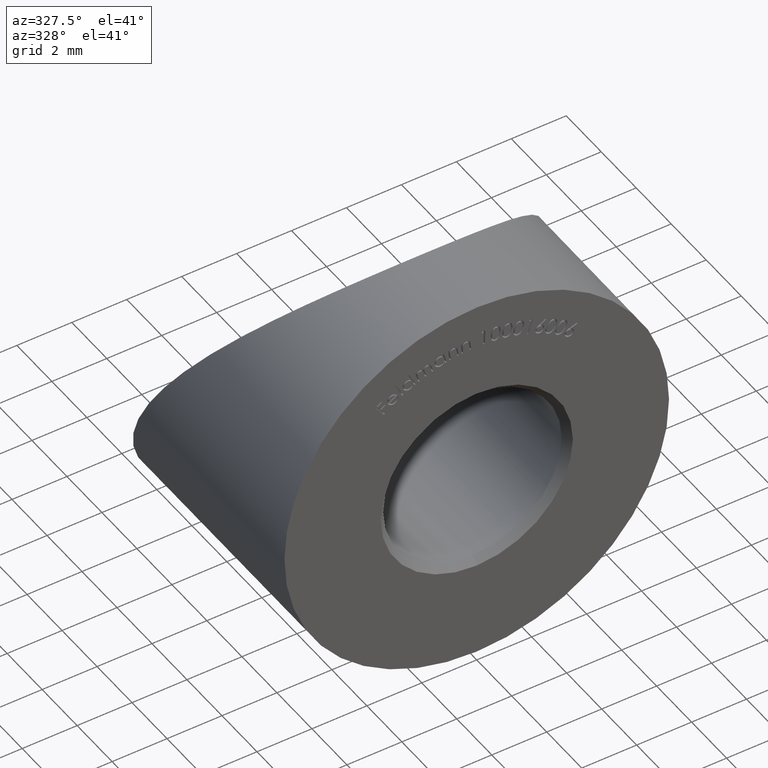
[diagram: clean part render]
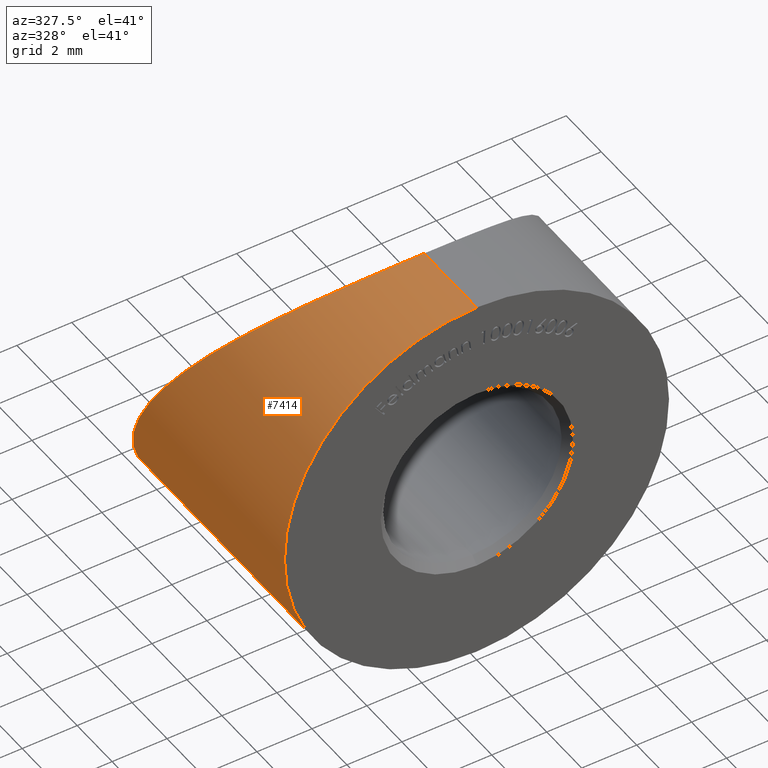
[diagram: same view with one face highlighted and labeled with its STEP entity id]
A machine part, auxiliary view. The second image highlights one B-rep face of the part: STEP entity #7414.
In plain terms, the highlighted cylindrical surface (partial cylindrical patch) has radius 7 mm, axis along (-0, -1, -0).
Its self-contained STEP definition (entity closure, byte-faithful):
#2 = EDGE_CURVE ( 'NONE', #9500, #5680, #3328, .T. ) ;
#785 = CARTESIAN_POINT ( 'NONE',  ( -1.963054640487438300, 10.55535037021913200, -6.737228743966025700 ) ) ;
#826 = CARTESIAN_POINT ( 'NONE',  ( -2.429422027834667700, 10.52785955559408900, -6.583432806244323900 ) ) ;
#868 = CARTESIAN_POINT ( 'NONE',  ( -2.398664887283789700, 3.370443996117294300, 6.592601935012975600 ) ) ;
#1249 = ORIENTED_EDGE ( 'NONE', *, *, #2, .T. ) ;
#1418 = EDGE_LOOP ( 'NONE', ( #4679, #12352, #1249, #6826 ) ) ;
#1470 = AXIS2_PLACEMENT_3D ( 'NONE', #7815, #9904, #13371 ) ;
#1500 = CARTESIAN_POINT ( 'NONE',  ( 0.0000000000000000000, 0.0000000000000000000, -7.000000000000000000 ) ) ;
#1762 = CARTESIAN_POINT ( 'NONE',  ( -3.104336549737470200, 10.46776907150203000, -6.278854538200400600 ) ) ;
#1806 = CARTESIAN_POINT ( 'NONE',  ( -1.228148890896225700, 3.094957949352621400, 6.895668455694219800 ) ) ;
#1842 = CARTESIAN_POINT ( 'NONE',  ( -0.9978013944465682300, 10.59186766207333900, -6.946094373624778700 ) ) ;
#1877 = CARTESIAN_POINT ( 'NONE',  ( -3.036546965280483500, 3.620695096840181600, 6.311369178427301400 ) ) ;
#2077 = CIRCLE ( 'NONE', #9485, 7.000000000000000000 ) ;
#2823 = CARTESIAN_POINT ( 'NONE',  ( -6.298104035302205100, 9.565793292662462500, -3.091189089994581100 ) ) ;
#2866 = CARTESIAN_POINT ( 'NONE',  ( -5.566950340264313000, 5.329660144969657200, 4.264179286748681200 ) ) ;
#2913 = CARTESIAN_POINT ( 'NONE',  ( -6.034160235997791900, 5.856419595760873300, 3.572544097251774400 ) ) ;
#3328 = LINE ( 'NONE', #8105, #8650 ) ;
#3368 = CARTESIAN_POINT ( 'NONE',  ( 0.0000000000000000000, 0.0000000000000000000, 0.0000000000000000000 ) ) ;
#3624 = CARTESIAN_POINT ( 'NONE',  ( 8.572527595924596400E-016, 2.999310102530931200, 7.000000000000000000 ) ) ;
#3665 = CARTESIAN_POINT ( 'NONE',  ( 8.572527595924596400E-016, 2.999310102530931200, 7.000000000000000000 ) ) ;
#3875 = CARTESIAN_POINT ( 'NONE',  ( -4.894101674813471800, 10.17125270580954000, -5.010691143654900000 ) ) ;
#3922 = CARTESIAN_POINT ( 'NONE',  ( -0.9873364735729619500, 3.059484138445236900, 6.934404837675019800 ) ) ;
#3927 = EDGE_CURVE ( 'NONE', #3961, #8093, #4431, .T. ) ;
#3961 = VERTEX_POINT ( 'NONE', #3624 ) ;
#3962 = CARTESIAN_POINT ( 'NONE',  ( -6.964382305766500600, 7.691284753999823000, 0.8242255331129246800 ) ) ;
#4110 = CARTESIAN_POINT ( 'NONE',  ( 0.0000000000000000000, 10.60068989746907400, -7.000000000000000000 ) ) ;
#4431 = LINE ( 'NONE', #6618, #10891 ) ;
#4585 = CARTESIAN_POINT ( 'NONE',  ( 8.572527594031473200E-016, 0.0000000000000000000, 7.000000000000000000 ) ) ;
#4679 = ORIENTED_EDGE ( 'NONE', *, *, #3927, .F. ) ;
#4727 = CYLINDRICAL_SURFACE ( 'NONE', #1470, 7.000000000000000000 ) ;
#4950 = CARTESIAN_POINT ( 'NONE',  ( -4.534202660878510600, 10.25586985209504900, -5.338563774143373100 ) ) ;
#5031 = CARTESIAN_POINT ( 'NONE',  ( -5.827548846044991600, 9.848704558034251400, -3.906563563613316700 ) ) ;
#5497 = DIRECTION ( 'NONE',  ( 0.0000000000000000000, 1.000000000000000000, 0.0000000000000000000 ) ) ;
#5680 = VERTEX_POINT ( 'NONE', #1500 ) ;
#5967 = CARTESIAN_POINT ( 'NONE',  ( -3.954174698842155800, 10.36123914404402200, -5.781327236983308600 ) ) ;
#6005 = CARTESIAN_POINT ( 'NONE',  ( -6.492153381974373100, 9.401168471638218400, -2.657413415642834800 ) ) ;
#6057 = CARTESIAN_POINT ( 'NONE',  ( -5.550273157060508400, 9.969201685948839000, -4.292928570267518400 ) ) ;
#6618 = CARTESIAN_POINT ( 'NONE',  ( 8.572527594031473200E-016, 15.00000000000000000, 7.000000000000000000 ) ) ;
#6826 = ORIENTED_EDGE ( 'NONE', *, *, #8063, .T. ) ;
#6846 = CARTESIAN_POINT ( 'NONE',  ( -0.2464751579487212400, 2.999310102530932100, 7.000000000000000900 ) ) ;
#7063 = DIRECTION ( 'NONE',  ( -0.0000000000000000000, -1.000000000000000000, -0.0000000000000000000 ) ) ;
#7067 = CARTESIAN_POINT ( 'NONE',  ( -7.000794283566611900, 8.052608274183297600, 0.1853956762124669100 ) ) ;
#7116 = CARTESIAN_POINT ( 'NONE',  ( -3.750183854106616800, 10.39118299338020700, -5.915789609080668800 ) ) ;
#7158 = CARTESIAN_POINT ( 'NONE',  ( -0.4978364498566462700, 10.60068989746907600, -7.000000000000001800 ) ) ;
#7414 = ADVANCED_FACE ( 'NONE', ( #7528 ), #4727, .T. ) ;
#7528 = FACE_OUTER_BOUND ( 'NONE', #1418, .T. ) ;
#7815 = CARTESIAN_POINT ( 'NONE',  ( 0.0000000000000000000, 15.00000000000000000, 0.0000000000000000000 ) ) ;
#8050 = B_SPLINE_CURVE_WITH_KNOTS ( 'NONE', 3,
 ( #3665, #6846, #8190, #3922, #1806, #13473, #868, #1877, #9274, #9138, #9182, #12493, #11300, #9230, #2866, #2913, #11342, #8146, #9312, #10270, #3962, #7067, #10312, #10231, #8235, #12412, #11387, #6005, #2823, #5031, #6057, #12453, #3875, #4950, #13516, #5967, #7116, #12373, #1762, #826, #785, #1842, #7158, #11256 ),
 .UNSPECIFIED., .F., .F.,
 ( 4, 2, 2, 2, 2, 2, 2, 2, 2, 2, 2, 2, 2, 2, 2, 2, 2, 2, 2, 2, 2, 4 ),
 ( 0.02358904861307365900, 0.02432525439597219400, 0.02506146017887072800, 0.02653387174466780000, 0.02727007752756633500, 0.02800628331046486900, 0.02947869487626193800, 0.03095110644205900700, 0.03242351800785607500, 0.03389592957365314400, 0.03536834113945021300, 0.03610454692234875400, 0.03684075270524728900, 0.03831316427104436400, 0.03978557583684144000, 0.04125798740263850900, 0.04199419318553705000, 0.04273039896843558400, 0.04346660475133412600, 0.04420281053423266000, 0.04567522210002973600, 0.04714763366582681200 ),
 .UNSPECIFIED. ) ;
#8063 = EDGE_CURVE ( 'NONE', #5680, #8093, #2077, .T. ) ;
#8093 = VERTEX_POINT ( 'NONE', #4585 ) ;
#8105 = CARTESIAN_POINT ( 'NONE',  ( 0.0000000000000000000, 15.00000000000000000, -7.000000000000000000 ) ) ;
#8146 = CARTESIAN_POINT ( 'NONE',  ( -6.569606108069328000, 6.655314706468018900, 2.451990167185486200 ) ) ;
#8190 = CARTESIAN_POINT ( 'NONE',  ( -0.4969475987638539100, 3.011549160646709700, 6.986690693661844700 ) ) ;
#8235 = CARTESIAN_POINT ( 'NONE',  ( -6.969577154654547100, 8.514839100517987100, -0.6887989745555076500 ) ) ;
#8650 = VECTOR ( 'NONE', #7063, 1000.000000000000000 ) ;
#8827 = DIRECTION ( 'NONE',  ( -0.0000000000000000000, -1.000000000000000000, -0.0000000000000000000 ) ) ;
#8854 = DIRECTION ( 'NONE',  ( 0.0000000000000000000, 0.0000000000000000000, 1.000000000000000000 ) ) ;
#9138 = CARTESIAN_POINT ( 'NONE',  ( -3.638257915258539000, 3.907446899714217500, 5.984555877532983500 ) ) ;
#9182 = CARTESIAN_POINT ( 'NONE',  ( -3.830083260779034500, 4.012442436077511900, 5.863418104700211400 ) ) ;
#9230 = CARTESIAN_POINT ( 'NONE',  ( -5.298243257005527300, 5.068294425062777700, 4.594496442934847400 ) ) ;
#9274 = CARTESIAN_POINT ( 'NONE',  ( -3.241708545144176100, 3.711754884034618400, 6.208313411675925800 ) ) ;
#9312 = CARTESIAN_POINT ( 'NONE',  ( -6.705340974688216000, 6.923642147121394300, 2.052618164200293200 ) ) ;
#9485 = AXIS2_PLACEMENT_3D ( 'NONE', #3368, #5497, #8854 ) ;
#9500 = VERTEX_POINT ( 'NONE', #4110 ) ;
#9904 = DIRECTION ( 'NONE',  ( -0.0000000000000000000, -1.000000000000000000, -0.0000000000000000000 ) ) ;
#10231 = CARTESIAN_POINT ( 'NONE',  ( -6.987836151917358400, 8.401550812205195800, -0.4667624275116379900 ) ) ;
#10270 = CARTESIAN_POINT ( 'NONE',  ( -6.902009882265338600, 7.440798732590698400, 1.239797765746201200 ) ) ;
#10312 = CARTESIAN_POINT ( 'NONE',  ( -7.003343001908721300, 8.170648864080281000, -0.03013382478106338800 ) ) ;
#10891 = VECTOR ( 'NONE', #8827, 1000.000000000000000 ) ;
#11256 = CARTESIAN_POINT ( 'NONE',  ( 0.0000000000000000000, 10.60068989746907400, -7.000000000000000000 ) ) ;
#11300 = CARTESIAN_POINT ( 'NONE',  ( -4.703203021026729000, 4.574101942821914500, 5.201986208896611800 ) ) ;
#11342 = CARTESIAN_POINT ( 'NONE',  ( -6.234138253516075400, 6.122544559486203600, 3.210529618490322700 ) ) ;
#11387 = CARTESIAN_POINT ( 'NONE',  ( -6.783141481448273800, 9.038570245394600600, -1.788545006248248600 ) ) ;
#12352 = ORIENTED_EDGE ( 'NONE', *, *, #13417, .T. ) ;
#12373 = CARTESIAN_POINT ( 'NONE',  ( -3.325901198742525500, 10.44440535814521600, -6.164318847586637100 ) ) ;
#12412 = CARTESIAN_POINT ( 'NONE',  ( -6.882919561443957300, 8.839820185368275000, -1.350265632687610800 ) ) ;
#12453 = CARTESIAN_POINT ( 'NONE',  ( -5.066976026240194400, 10.12398649681044900, -4.835746675163880700 ) ) ;
#12493 = CARTESIAN_POINT ( 'NONE',  ( -4.375437584530696500, 4.339126749912872500, 5.482005523891780600 ) ) ;
#13371 = DIRECTION ( 'NONE',  ( 0.0000000000000000000, 0.0000000000000000000, -1.000000000000000000 ) ) ;
#13417 = EDGE_CURVE ( 'NONE', #3961, #9500, #8050, .T. ) ;
#13473 = CARTESIAN_POINT ( 'NONE',  ( -1.938251272794275300, 3.233432781851251400, 6.743704812621548000 ) ) ;
#13516 = CARTESIAN_POINT ( 'NONE',  ( -4.346184663904369700, 10.29358176735683000, -5.492715269999984600 ) ) ;